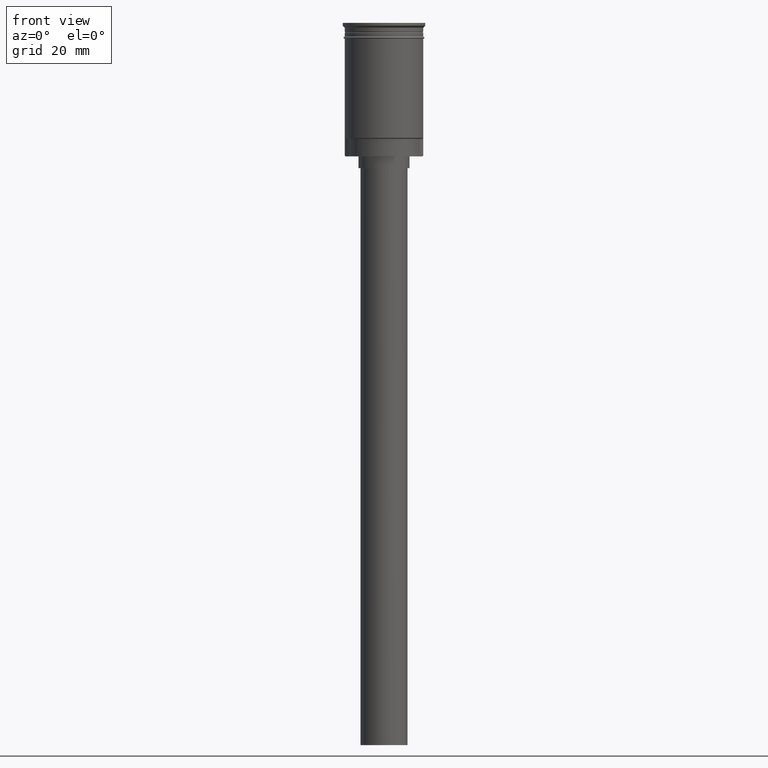
[diagram: clean part render]
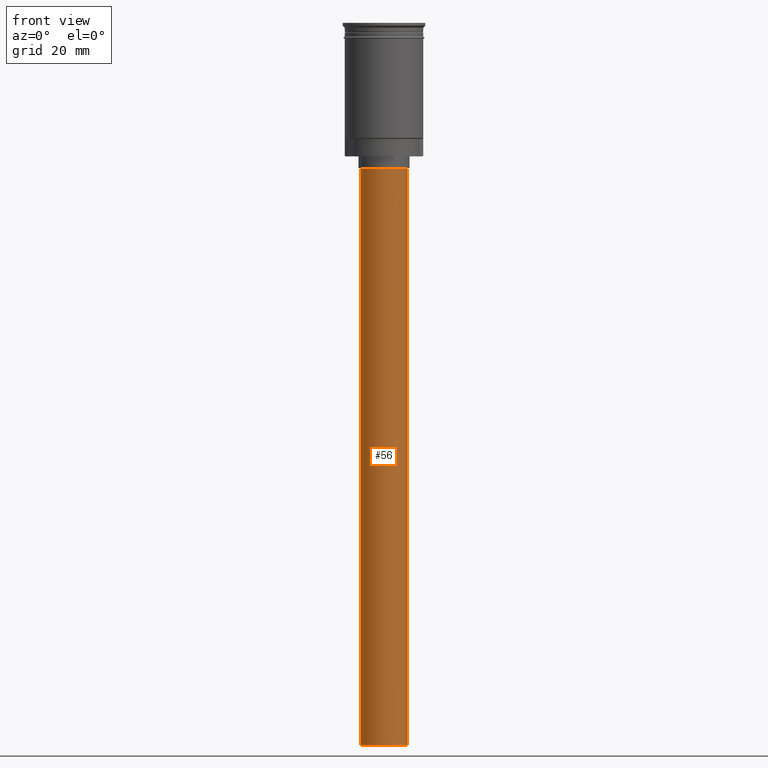
[diagram: same view with one face highlighted and labeled with its STEP entity id]
A machine part, front view. The second image highlights one B-rep face of the part: STEP entity #56.
In plain terms, the highlighted cylindrical surface (edge-blend (fillet) strip) has radius 6 mm, axis along (-0, -0, 1).
Its self-contained STEP definition (entity closure, byte-faithful):
#13 = CIRCLE ( 'NONE', #641, 6.000000000000000888 ) ;
#32 = AXIS2_PLACEMENT_3D ( 'NONE', #313, #797, #421 ) ;
#49 = CYLINDRICAL_SURFACE ( 'NONE', #32, 6.000000000000000888 ) ;
#56 = ADVANCED_FACE ( 'NONE', ( #1078 ), #49, .T. ) ;
#141 = VECTOR ( 'NONE', #798, 1000.000000000000000 ) ;
#235 = EDGE_CURVE ( 'NONE', #1578, #745, #13, .T. ) ;
#313 = CARTESIAN_POINT ( 'NONE',  ( 0.000000000000000000, 0.000000000000000000, -184.0000000000000000 ) ) ;
#337 = CARTESIAN_POINT ( 'NONE',  ( -6.000000000000000888, 7.347880794884120722E-16, -37.00000000000000000 ) ) ;
#353 = EDGE_CURVE ( 'NONE', #745, #1178, #667, .T. ) ;
#376 = DIRECTION ( 'NONE',  ( 0.000000000000000000, 0.000000000000000000, -1.000000000000000000 ) ) ;
#385 = AXIS2_PLACEMENT_3D ( 'NONE', #839, #1592, #717 ) ;
#394 = VERTEX_POINT ( 'NONE', #1045 ) ;
#421 = DIRECTION ( 'NONE',  ( 1.000000000000000000, 0.000000000000000000, 0.000000000000000000 ) ) ;
#450 = CARTESIAN_POINT ( 'NONE',  ( -6.000000000000000888, 7.347880794884120722E-16, -184.0000000000000000 ) ) ;
#641 = AXIS2_PLACEMENT_3D ( 'NONE', #1465, #376, #1108 ) ;
#667 = LINE ( 'NONE', #680, #141 ) ;
#680 = CARTESIAN_POINT ( 'NONE',  ( -6.000000000000000888, 7.347880794884120722E-16, -184.0000000000000000 ) ) ;
#700 = ORIENTED_EDGE ( 'NONE', *, *, #1026, .T. ) ;
#712 = DIRECTION ( 'NONE',  ( -0.000000000000000000, -0.000000000000000000, 1.000000000000000000 ) ) ;
#717 = DIRECTION ( 'NONE',  ( -1.000000000000000000, 0.000000000000000000, 0.000000000000000000 ) ) ;
#729 = CIRCLE ( 'NONE', #385, 6.000000000000000888 ) ;
#745 = VERTEX_POINT ( 'NONE', #450 ) ;
#787 = EDGE_LOOP ( 'NONE', ( #1580, #1491, #700, #1307 ) ) ;
#797 = DIRECTION ( 'NONE',  ( -0.000000000000000000, -0.000000000000000000, 1.000000000000000000 ) ) ;
#798 = DIRECTION ( 'NONE',  ( -0.000000000000000000, -0.000000000000000000, 1.000000000000000000 ) ) ;
#839 = CARTESIAN_POINT ( 'NONE',  ( 0.000000000000000000, 0.000000000000000000, -37.00000000000000000 ) ) ;
#871 = EDGE_CURVE ( 'NONE', #394, #1178, #729, .T. ) ;
#1026 = EDGE_CURVE ( 'NONE', #1578, #394, #1053, .T. ) ;
#1045 = CARTESIAN_POINT ( 'NONE',  ( 6.000000000000000888, 0.000000000000000000, -37.00000000000000000 ) ) ;
#1053 = LINE ( 'NONE', #1306, #1566 ) ;
#1078 = FACE_OUTER_BOUND ( 'NONE', #787, .T. ) ;
#1108 = DIRECTION ( 'NONE',  ( -1.000000000000000000, 0.000000000000000000, 0.000000000000000000 ) ) ;
#1178 = VERTEX_POINT ( 'NONE', #337 ) ;
#1191 = CARTESIAN_POINT ( 'NONE',  ( 6.000000000000000888, 0.000000000000000000, -184.0000000000000000 ) ) ;
#1306 = CARTESIAN_POINT ( 'NONE',  ( 6.000000000000000888, 0.000000000000000000, -184.0000000000000000 ) ) ;
#1307 = ORIENTED_EDGE ( 'NONE', *, *, #871, .T. ) ;
#1465 = CARTESIAN_POINT ( 'NONE',  ( 0.000000000000000000, 0.000000000000000000, -184.0000000000000000 ) ) ;
#1491 = ORIENTED_EDGE ( 'NONE', *, *, #235, .F. ) ;
#1566 = VECTOR ( 'NONE', #712, 1000.000000000000000 ) ;
#1578 = VERTEX_POINT ( 'NONE', #1191 ) ;
#1580 = ORIENTED_EDGE ( 'NONE', *, *, #353, .F. ) ;
#1592 = DIRECTION ( 'NONE',  ( 0.000000000000000000, 0.000000000000000000, -1.000000000000000000 ) ) ;